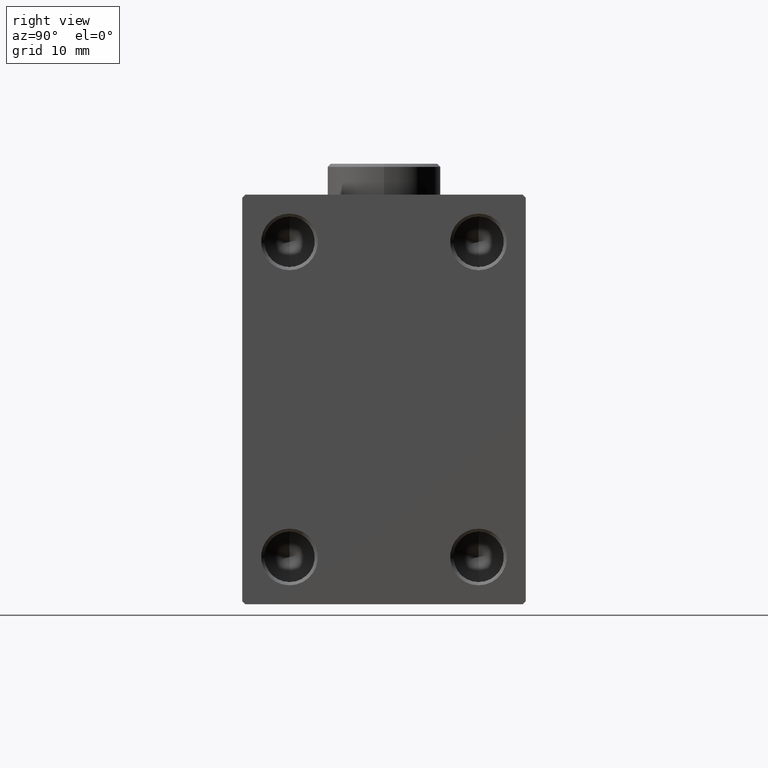
[diagram: clean part render]
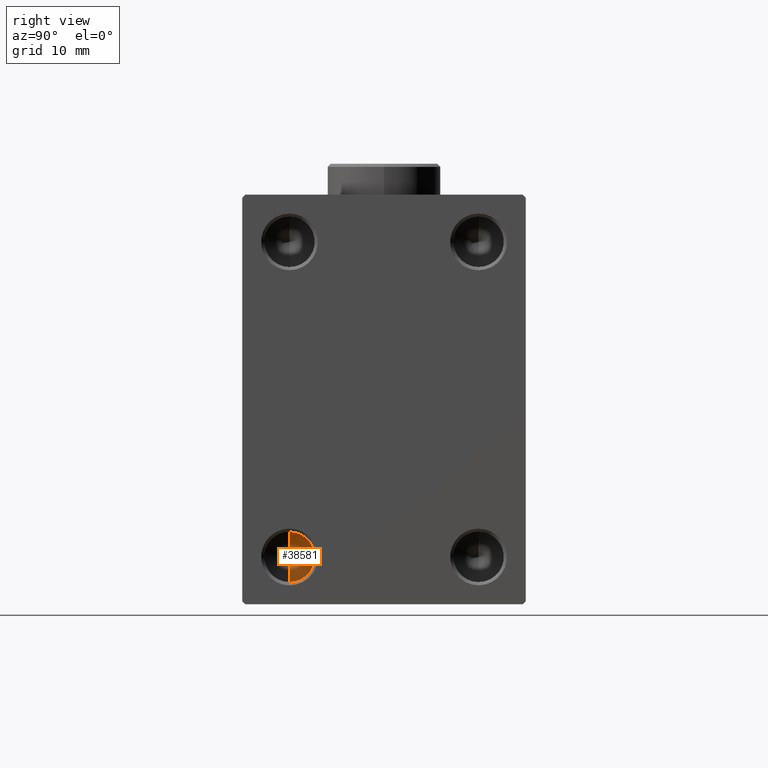
[diagram: same view with one face highlighted and labeled with its STEP entity id]
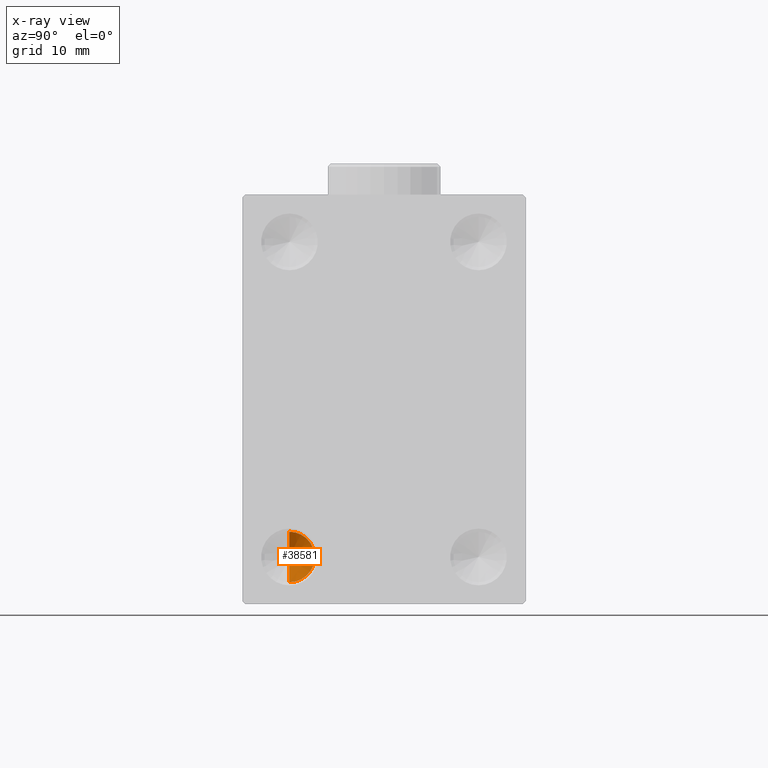
[diagram: x-ray of the same camera — body ghosted, the highlighted face saturated]
A machine part, right view. The second image highlights one B-rep face of the part: STEP entity #38581.
The next image is the same camera in x-ray: the body ghosted, the highlighted face saturated — about 0% of this face is hidden behind the body in this view.
In plain terms, the highlighted conical surface has half-angle 59 deg.
Its self-contained STEP definition (entity closure, byte-faithful):
#1446 = EDGE_CURVE ( 'NONE', #36754, #20704, #16234, .T. ) ;
#4105 = VERTEX_POINT ( 'NONE', #37474 ) ;
#9926 = CARTESIAN_POINT ( 'NONE',  ( 55.00000000000000711, -15.00000000000000000, -25.00000000000000000 ) ) ;
#10450 = CARTESIAN_POINT ( 'NONE',  ( 55.00000000000000711, -15.00000000000000000, -28.99999999999999645 ) ) ;
#11558 = EDGE_CURVE ( 'NONE', #36754, #4105, #34423, .T. ) ;
#12699 = VECTOR ( 'NONE', #24517, 1000.000000000000000 ) ;
#12829 = ORIENTED_EDGE ( 'NONE', *, *, #1446, .F. ) ;
#12935 = FACE_OUTER_BOUND ( 'NONE', #35577, .T. ) ;
#15387 = CONICAL_SURFACE ( 'NONE', #22011, 3.999999999999996447, 1.029744258676653867 ) ;
#16234 = LINE ( 'NONE', #43905, #21807 ) ;
#19805 = EDGE_CURVE ( 'NONE', #20704, #4105, #30585, .T. ) ;
#20704 = VERTEX_POINT ( 'NONE', #42739 ) ;
#21807 = VECTOR ( 'NONE', #22934, 1000.000000000000000 ) ;
#22011 = AXIS2_PLACEMENT_3D ( 'NONE', #9926, #41743, #38287 ) ;
#22344 = CARTESIAN_POINT ( 'NONE',  ( 55.00000000000000711, -15.00000000000000000, -25.00000000000000000 ) ) ;
#22934 = DIRECTION ( 'NONE',  ( 0.5150380749100547106, 0.000000000000000000, 0.8571673007021120005 ) ) ;
#24517 = DIRECTION ( 'NONE',  ( 0.5150380749100547106, -1.049727191138618326E-16, -0.8571673007021120005 ) ) ;
#25814 = DIRECTION ( 'NONE',  ( -1.000000000000000000, 0.000000000000000000, 0.000000000000000000 ) ) ;
#30585 = CIRCLE ( 'NONE', #43142, 3.999999999999996447 ) ;
#31962 = ORIENTED_EDGE ( 'NONE', *, *, #11558, .T. ) ;
#33171 = DIRECTION ( 'NONE',  ( 0.000000000000000000, 0.000000000000000000, 1.000000000000000000 ) ) ;
#34423 = LINE ( 'NONE', #10450, #12699 ) ;
#35577 = EDGE_LOOP ( 'NONE', ( #12829, #31962, #36570 ) ) ;
#36570 = ORIENTED_EDGE ( 'NONE', *, *, #19805, .F. ) ;
#36754 = VERTEX_POINT ( 'NONE', #40912 ) ;
#37474 = CARTESIAN_POINT ( 'NONE',  ( 55.00000000000000711, -15.00000000000000000, -28.99999999999999645 ) ) ;
#38287 = DIRECTION ( 'NONE',  ( 0.000000000000000000, 0.000000000000000000, 1.000000000000000000 ) ) ;
#38581 = ADVANCED_FACE ( 'NONE', ( #12935 ), #15387, .F. ) ;
#40912 = CARTESIAN_POINT ( 'NONE',  ( 52.59655752388976424, -15.00000000000000533, -25.00000000000000000 ) ) ;
#41743 = DIRECTION ( 'NONE',  ( 1.000000000000000000, -0.000000000000000000, -0.000000000000000000 ) ) ;
#42739 = CARTESIAN_POINT ( 'NONE',  ( 55.00000000000000711, -15.00000000000000000, -21.00000000000000355 ) ) ;
#43142 = AXIS2_PLACEMENT_3D ( 'NONE', #22344, #25814, #33171 ) ;
#43905 = CARTESIAN_POINT ( 'NONE',  ( 55.00000000000000711, -15.00000000000000000, -21.00000000000000355 ) ) ;